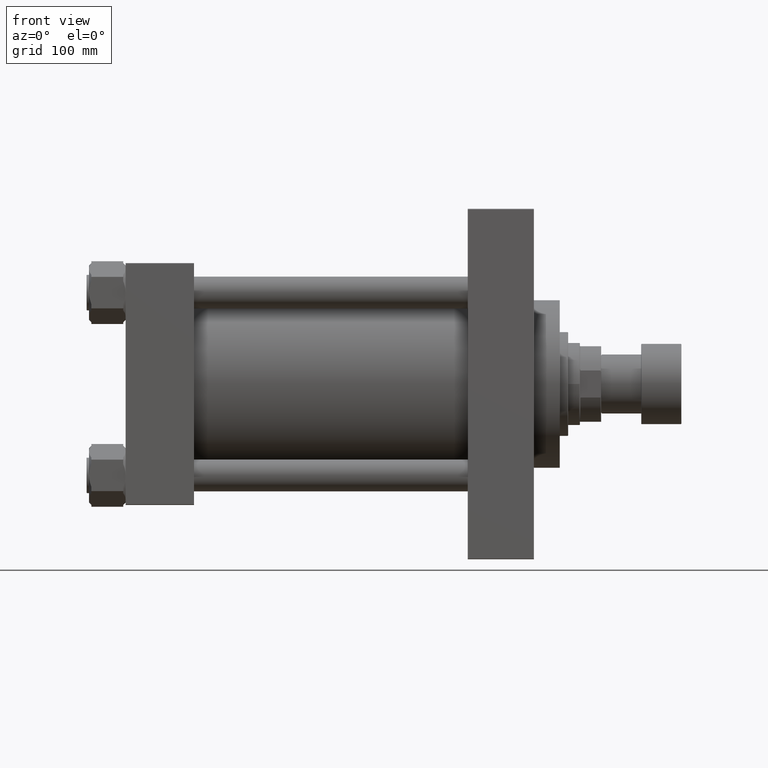
[diagram: clean part render]
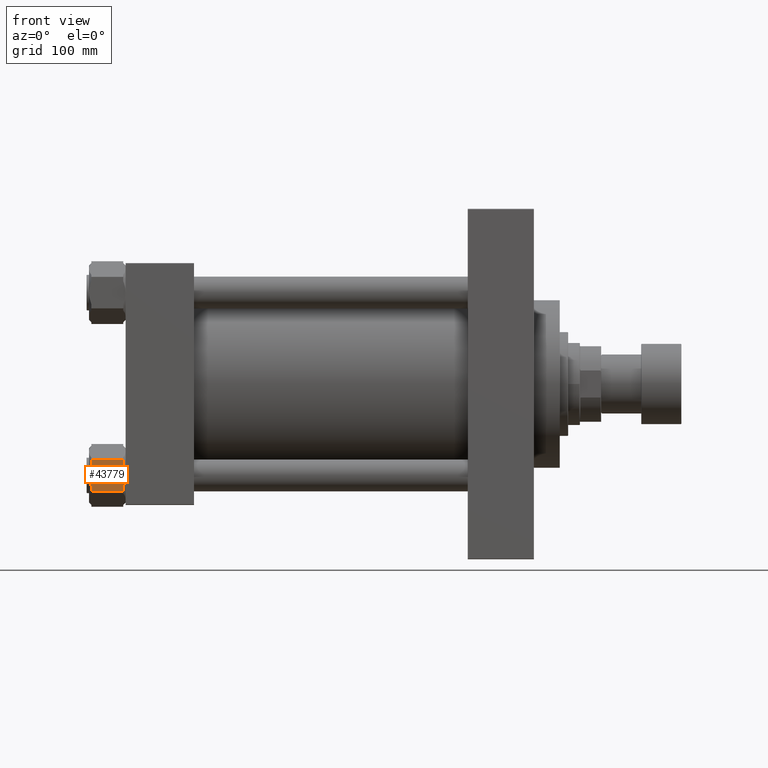
[diagram: same view with one face highlighted and labeled with its STEP entity id]
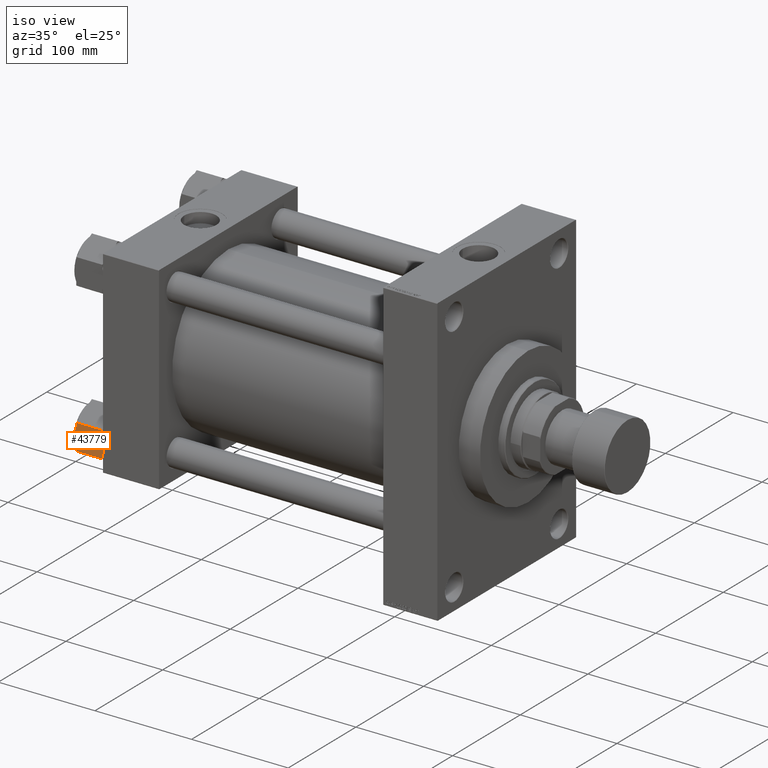
[diagram: same view with one face highlighted and labeled with its STEP entity id]
A machine part, front view. The second image highlights one B-rep face of the part: STEP entity #43779.
A second angle (iso view) of the same face is appended — the face is thin or edge-on in the first view.
In plain terms, the highlighted planar face has unit normal (0, 1, -0).
Its self-contained STEP definition (entity closure, byte-faithful):
#23 = LINE ( 'NONE', #7803, #36875 ) ;
#172 = CARTESIAN_POINT ( 'NONE',  ( 8.222377524857016340, 23.05359624874177271, -1.410427084452076096 ) ) ;
#838 = CARTESIAN_POINT ( 'NONE',  ( -1.690332161126402166, 23.05359624874176916, -31.00000000000001066 ) ) ;
#2142 = VERTEX_POINT ( 'NONE', #6918 ) ;
#4100 = DIRECTION ( 'NONE',  ( -0.000000000000000000, -0.000000000000000000, 1.000000000000000000 ) ) ;
#4204 = VERTEX_POINT ( 'NONE', #37105 ) ;
#4268 = CARTESIAN_POINT ( 'NONE',  ( 0.4218342054646858630, 23.05359624874177982, -31.00000000000001421 ) ) ;
#4644 = CARTESIAN_POINT ( 'NONE',  ( 0.000000000000000000, 23.05359624874176561, 0.000000000000000000 ) ) ;
#4737 = CARTESIAN_POINT ( 'NONE',  ( 8.238500401260301587, 23.05359624874177626, -29.61483447804336322 ) ) ;
#4826 = DIRECTION ( 'NONE',  ( 0.000000000000000000, -0.000000000000000000, -1.000000000000000000 ) ) ;
#4961 = AXIS2_PLACEMENT_3D ( 'NONE', #43042, #16003, #4826 ) ;
#5125 = CARTESIAN_POINT ( 'NONE',  ( -0.8470567002417573876, 23.05359624874177271, -0.01168982920650373826 ) ) ;
#5220 = CARTESIAN_POINT ( 'NONE',  ( 0.000000000000000000, 23.05359624874176561, -31.00000000000000000 ) ) ;
#6315 = ORIENTED_EDGE ( 'NONE', *, *, #6500, .F. ) ;
#6500 = EDGE_CURVE ( 'NONE', #27927, #33918, #29405, .T. ) ;
#6814 = B_SPLINE_CURVE_WITH_KNOTS ( 'NONE', 3,
 ( #19564, #19814, #41494, #8150, #22998, #15668, #838, #23453 ),
 .UNSPECIFIED., .F., .F.,
 ( 4, 2, 2, 4 ),
 ( 0.03704433557245612185, 0.03955680769153650800, 0.04206927981061689414, 0.04709422404877767337 ),
 .UNSPECIFIED. ) ;
#6918 = CARTESIAN_POINT ( 'NONE',  ( -9.808893158505068044, 23.05359624874177271, -28.99999999999999645 ) ) ;
#7543 = LINE ( 'NONE', #33816, #8775 ) ;
#7565 = DIRECTION ( 'NONE',  ( 1.000000000000000000, 0.000000000000000000, 0.000000000000000000 ) ) ;
#7715 = CARTESIAN_POINT ( 'NONE',  ( 6.612214801278774701, 23.05359624874176916, -0.9172679422720635412 ) ) ;
#7803 = CARTESIAN_POINT ( 'NONE',  ( -13.30999999999999517, 23.05359624874177271, -28.99999999999999645 ) ) ;
#7899 = CARTESIAN_POINT ( 'NONE',  ( 3.366747807636258027, 23.05359624874176916, -30.77026726310295501 ) ) ;
#8150 = CARTESIAN_POINT ( 'NONE',  ( -6.612214801278788912, 23.05359624874176916, -30.08273205772793801 ) ) ;
#8447 = CARTESIAN_POINT ( 'NONE',  ( -13.30999999999999517, 23.05359624874177271, -2.000000000000001776 ) ) ;
#8775 = VECTOR ( 'NONE', #22396, 1000.000000000000000 ) ;
#8782 = CARTESIAN_POINT ( 'NONE',  ( 9.808893158505055609, 23.05359624874177271, -2.000000000000000000 ) ) ;
#8857 = CARTESIAN_POINT ( 'NONE',  ( 1.693046291327861441, 23.05359624874175850, -30.94177411052104532 ) ) ;
#10730 = EDGE_CURVE ( 'NONE', #37947, #32297, #45374, .T. ) ;
#11245 = VERTEX_POINT ( 'NONE', #8782 ) ;
#11509 = CARTESIAN_POINT ( 'NONE',  ( 0.000000000000000000, 23.05359624874176561, -31.00000000000000000 ) ) ;
#12915 = EDGE_CURVE ( 'NONE', #43043, #42169, #28870, .T. ) ;
#12995 = EDGE_CURVE ( 'NONE', #2142, #43043, #6814, .T. ) ;
#15339 = CARTESIAN_POINT ( 'NONE',  ( -9.808893158505055609, 23.05359624874177271, -2.000000000000000000 ) ) ;
#15668 = CARTESIAN_POINT ( 'NONE',  ( -3.350210548520263121, 23.05359624874177271, -30.81266480856790579 ) ) ;
#15971 = CARTESIAN_POINT ( 'NONE',  ( 3.350210548520252907, 23.05359624874177626, -0.1873351914320967315 ) ) ;
#16003 = DIRECTION ( 'NONE',  ( 0.000000000000000000, -1.000000000000000000, 0.000000000000000000 ) ) ;
#16288 = CARTESIAN_POINT ( 'NONE',  ( -3.366747807636247813, 23.05359624874176561, -0.2297327368970412120 ) ) ;
#17383 = ORIENTED_EDGE ( 'NONE', *, *, #12915, .F. ) ;
#18108 = ORIENTED_EDGE ( 'NONE', *, *, #37842, .F. ) ;
#19095 = CARTESIAN_POINT ( 'NONE',  ( 4.192182187841027918, 23.05359624874177626, -30.63552287451819822 ) ) ;
#19236 = CARTESIAN_POINT ( 'NONE',  ( -0.4218342054646835870, 23.05359624874177271, 4.573977915173220598E-17 ) ) ;
#19564 = CARTESIAN_POINT ( 'NONE',  ( -9.808893158505068044, 23.05359624874177271, -28.99999999999999645 ) ) ;
#19814 = CARTESIAN_POINT ( 'NONE',  ( -9.024432966208907558, 23.05359624874177271, -29.30712901002065607 ) ) ;
#20154 = VECTOR ( 'NONE', #27096, 1000.000000000000000 ) ;
#20170 = VERTEX_POINT ( 'NONE', #26924 ) ;
#22396 = DIRECTION ( 'NONE',  ( 1.000000000000000000, 0.000000000000000000, 0.000000000000000000 ) ) ;
#22655 = CARTESIAN_POINT ( 'NONE',  ( -13.30999999999999517, 23.05359624874177271, -2.000000000000001776 ) ) ;
#22998 = CARTESIAN_POINT ( 'NONE',  ( -5.801497649255020761, 23.05359624874177271, -30.29464328683342345 ) ) ;
#23074 = CARTESIAN_POINT ( 'NONE',  ( -13.30999999999999517, 23.05359624874177271, -28.99999999999999645 ) ) ;
#23282 = LINE ( 'NONE', #8447, #28373 ) ;
#23363 = CARTESIAN_POINT ( 'NONE',  ( -1.693046291327859665, 23.05359624874176561, -0.05822588947894232619 ) ) ;
#23453 = CARTESIAN_POINT ( 'NONE',  ( 0.000000000000000000, 23.05359624874176561, -31.00000000000000000 ) ) ;
#23683 = B_SPLINE_CURVE_WITH_KNOTS ( 'NONE', 3,
 ( #41062, #33503, #172, #7715, #43006, #15971, #30816, #34714 ),
 .UNSPECIFIED., .F., .F.,
 ( 4, 2, 2, 4 ),
 ( 0.03704433557245614961, 0.03955680769153653575, 0.04206927981061691496, 0.04709422404877768031 ),
 .UNSPECIFIED. ) ;
#24477 = ORIENTED_EDGE ( 'NONE', *, *, #12995, .F. ) ;
#26298 = CARTESIAN_POINT ( 'NONE',  ( -6.641506094493657919, 23.05359624874177271, -0.8844859522422369169 ) ) ;
#26779 = B_SPLINE_CURVE_WITH_KNOTS ( 'NONE', 3,
 ( #4644, #19236, #5125, #23363, #37747, #16288, #34561, #26298, #41152, #15339 ),
 .UNSPECIFIED., .F., .F.,
 ( 4, 2, 2, 2, 4 ),
 ( 0.04709422404877768031, 0.04834823400549315836, 0.04960224396220863641, 0.05211026387563959944, 0.05712630370250151163 ),
 .UNSPECIFIED. ) ;
#26924 = CARTESIAN_POINT ( 'NONE',  ( 0.000000000000000000, 23.05359624874176561, 0.000000000000000000 ) ) ;
#27096 = DIRECTION ( 'NONE',  ( -0.000000000000000000, -0.000000000000000000, 1.000000000000000000 ) ) ;
#27338 = CARTESIAN_POINT ( 'NONE',  ( 9.808893158505068044, 23.05359624874177271, -28.99999999999999645 ) ) ;
#27927 = VERTEX_POINT ( 'NONE', #44701 ) ;
#28312 = EDGE_CURVE ( 'NONE', #20170, #4204, #26779, .T. ) ;
#28373 = VECTOR ( 'NONE', #30335, 1000.000000000000000 ) ;
#28870 = B_SPLINE_CURVE_WITH_KNOTS ( 'NONE', 3,
 ( #5220, #4268, #41976, #8857, #45148, #7899, #19095, #45387, #4737, #27338 ),
 .UNSPECIFIED., .F., .F.,
 ( 4, 2, 2, 2, 4 ),
 ( 0.04709422404877767337, 0.04834823400549315142, 0.04960224396220862947, 0.05211026387563959250, 0.05712630370250151163 ),
 .UNSPECIFIED. ) ;
#29405 = LINE ( 'NONE', #37428, #47275 ) ;
#30266 = CARTESIAN_POINT ( 'NONE',  ( -13.30999999999999517, 23.05359624874177271, -31.00000000000000000 ) ) ;
#30335 = DIRECTION ( 'NONE',  ( -1.000000000000000000, 0.000000000000000000, 0.000000000000000000 ) ) ;
#30816 = CARTESIAN_POINT ( 'NONE',  ( 1.690332161126403276, 23.05359624874177626, -2.439454888092385470E-16 ) ) ;
#32171 = EDGE_CURVE ( 'NONE', #37947, #2142, #23, .T. ) ;
#32297 = VERTEX_POINT ( 'NONE', #22655 ) ;
#33189 = ORIENTED_EDGE ( 'NONE', *, *, #39387, .F. ) ;
#33503 = CARTESIAN_POINT ( 'NONE',  ( 9.024432966208889795, 23.05359624874177626, -1.692870989979337271 ) ) ;
#33816 = CARTESIAN_POINT ( 'NONE',  ( -13.30999999999999517, 23.05359624874177271, -28.99999999999999645 ) ) ;
#33918 = VERTEX_POINT ( 'NONE', #40310 ) ;
#34507 = PLANE ( 'NONE',  #4961 ) ;
#34561 = CARTESIAN_POINT ( 'NONE',  ( -4.192182187841015484, 23.05359624874176916, -0.3644771254818151562 ) ) ;
#34714 = CARTESIAN_POINT ( 'NONE',  ( 0.000000000000000000, 23.05359624874176561, 0.000000000000000000 ) ) ;
#34857 = ORIENTED_EDGE ( 'NONE', *, *, #47038, .F. ) ;
#35600 = ORIENTED_EDGE ( 'NONE', *, *, #41108, .F. ) ;
#36208 = ORIENTED_EDGE ( 'NONE', *, *, #32171, .F. ) ;
#36288 = CARTESIAN_POINT ( 'NONE',  ( 9.808893158505068044, 23.05359624874177271, -28.99999999999999645 ) ) ;
#36875 = VECTOR ( 'NONE', #7565, 1000.000000000000000 ) ;
#37105 = CARTESIAN_POINT ( 'NONE',  ( -9.808893158505055609, 23.05359624874177271, -2.000000000000000000 ) ) ;
#37428 = CARTESIAN_POINT ( 'NONE',  ( 13.31000000000000583, 23.05359624874177271, -31.00000000000000000 ) ) ;
#37747 = CARTESIAN_POINT ( 'NONE',  ( -2.113373616412097533, 23.05359624874177626, -0.09294080339333840590 ) ) ;
#37842 = EDGE_CURVE ( 'NONE', #33918, #11245, #38404, .T. ) ;
#37947 = VERTEX_POINT ( 'NONE', #23074 ) ;
#38404 = LINE ( 'NONE', #44999, #39027 ) ;
#39027 = VECTOR ( 'NONE', #45946, 1000.000000000000000 ) ;
#39387 = EDGE_CURVE ( 'NONE', #11245, #20170, #23683, .T. ) ;
#40310 = CARTESIAN_POINT ( 'NONE',  ( 13.31000000000000227, 23.05359624874177271, -2.000000000000001776 ) ) ;
#41062 = CARTESIAN_POINT ( 'NONE',  ( 9.808893158505055609, 23.05359624874177271, -2.000000000000000000 ) ) ;
#41108 = EDGE_CURVE ( 'NONE', #42169, #27927, #7543, .T. ) ;
#41152 = CARTESIAN_POINT ( 'NONE',  ( -8.238500401260287376, 23.05359624874176561, -1.385165521956633006 ) ) ;
#41494 = CARTESIAN_POINT ( 'NONE',  ( -8.222377524857037656, 23.05359624874177271, -29.58957291554791524 ) ) ;
#41976 = CARTESIAN_POINT ( 'NONE',  ( 0.8470567002417581648, 23.05359624874177626, -30.98831017079349337 ) ) ;
#42169 = VERTEX_POINT ( 'NONE', #36288 ) ;
#43006 = CARTESIAN_POINT ( 'NONE',  ( 5.801497649255006550, 23.05359624874177271, -0.7053567131665720025 ) ) ;
#43042 = CARTESIAN_POINT ( 'NONE',  ( -13.30999999999999517, 23.05359624874177271, -31.00000000000000000 ) ) ;
#43043 = VERTEX_POINT ( 'NONE', #11509 ) ;
#43779 = ADVANCED_FACE ( 'NONE', ( #45721 ), #34507, .F. ) ;
#44184 = ORIENTED_EDGE ( 'NONE', *, *, #28312, .F. ) ;
#44701 = CARTESIAN_POINT ( 'NONE',  ( 13.31000000000000227, 23.05359624874177271, -28.99999999999999645 ) ) ;
#44999 = CARTESIAN_POINT ( 'NONE',  ( -13.30999999999999517, 23.05359624874177271, -2.000000000000001776 ) ) ;
#45148 = CARTESIAN_POINT ( 'NONE',  ( 2.113373616412105083, 23.05359624874176205, -30.90705919660664946 ) ) ;
#45374 = LINE ( 'NONE', #30266, #20154 ) ;
#45387 = CARTESIAN_POINT ( 'NONE',  ( 6.641506094493673018, 23.05359624874176916, -30.11551404775775964 ) ) ;
#45721 = FACE_OUTER_BOUND ( 'NONE', #47107, .T. ) ;
#45946 = DIRECTION ( 'NONE',  ( -1.000000000000000000, 0.000000000000000000, 0.000000000000000000 ) ) ;
#47038 = EDGE_CURVE ( 'NONE', #4204, #32297, #23282, .T. ) ;
#47042 = ORIENTED_EDGE ( 'NONE', *, *, #10730, .T. ) ;
#47107 = EDGE_LOOP ( 'NONE', ( #36208, #47042, #34857, #44184, #33189, #18108, #6315, #35600, #17383, #24477 ) ) ;
#47275 = VECTOR ( 'NONE', #4100, 1000.000000000000000 ) ;